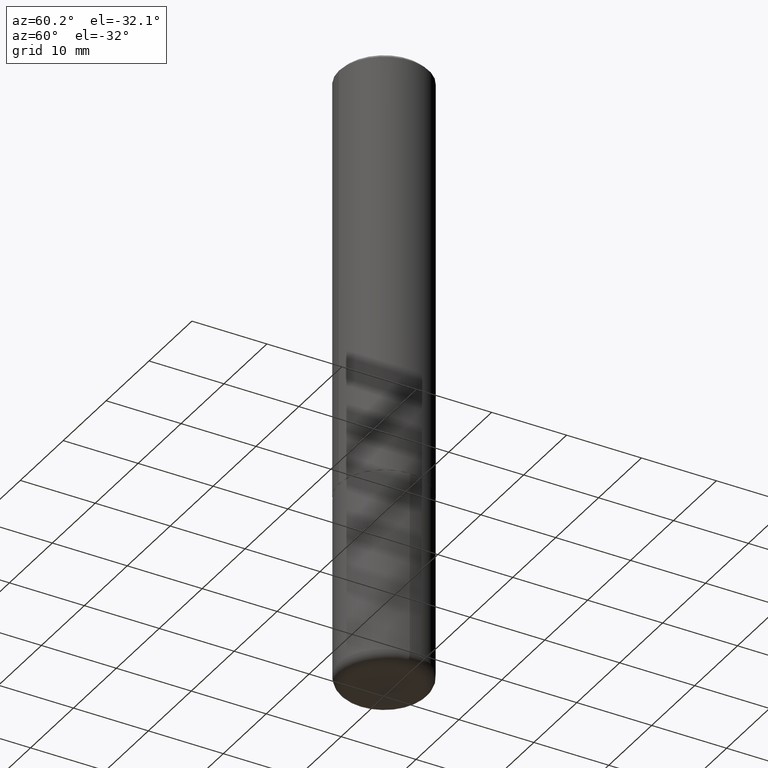
[diagram: clean part render]
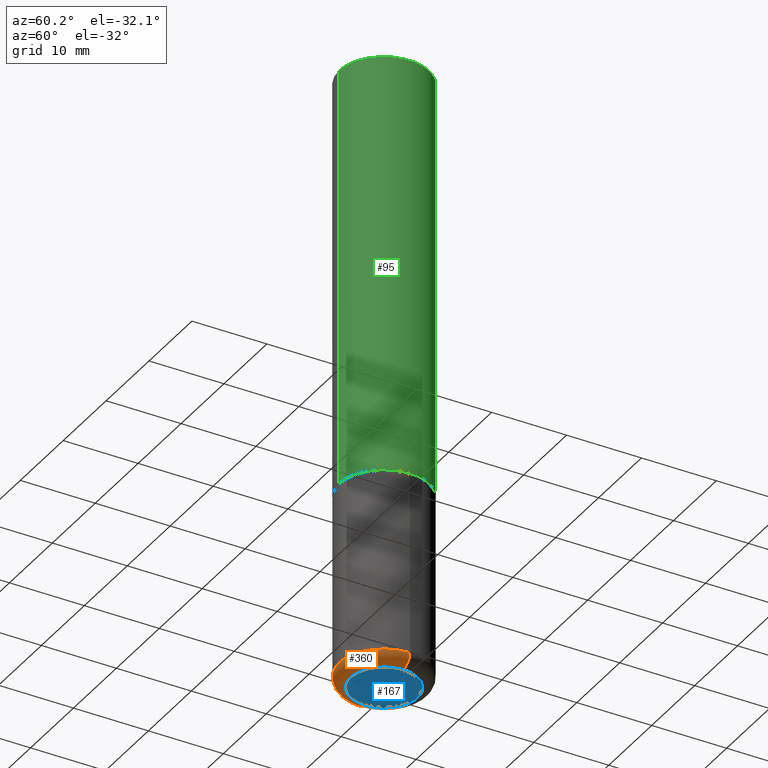
[diagram: same view with three faces highlighted in distinct colors, each labeled with its STEP entity id]
A machine part, auxiliary view with three faces highlighted in distinct colors.
Their STEP definitions:

[orange] entity #360 — the highlighted toroidal blend (fillet) surface has major radius 4.4806 mm and minor (blend) radius 1.5189 mm.
#2 = CIRCLE ( 'NONE', #391, 0.2362000000000000210 ) ;
#22 = EDGE_LOOP ( 'NONE', ( #319, #383, #142, #249 ) ) ;
#28 = CARTESIAN_POINT ( 'NONE',  ( -0.1764000000000000012, -9.946925600994110777E-15, -3.207900000000000418 ) ) ;
#34 = EDGE_CURVE ( 'NONE', #171, #211, #96, .T. ) ;
#35 = DIRECTION ( 'NONE',  ( -2.445468806185136597E-29, 3.491481338843145583E-15, 1.000000000000000000 ) ) ;
#48 = EDGE_CURVE ( 'NONE', #171, #51, #233, .T. ) ;
#51 = VERTEX_POINT ( 'NONE', #273 ) ;
#55 = CARTESIAN_POINT ( 'NONE',  ( -0.2361999999999999378, -9.522021045009570331E-15, -3.207900000000000418 ) ) ;
#84 = VERTEX_POINT ( 'NONE', #149 ) ;
#96 = CIRCLE ( 'NONE', #331, 0.05979999999999986715 ) ;
#102 = DIRECTION ( 'NONE',  ( 1.000000000000000000, -6.982962677686269077E-15, 4.883557194083113462E-29 ) ) ;
#103 = AXIS2_PLACEMENT_3D ( 'NONE', #164, #35, #102 ) ;
#116 = DIRECTION ( 'NONE',  ( -2.445468806185136597E-29, 3.491481338843145583E-15, 1.000000000000000000 ) ) ;
#117 = DIRECTION ( 'NONE',  ( 1.000000000000000000, -6.982962677686260400E-15, 0.000000000000000000 ) ) ;
#123 = DIRECTION ( 'NONE',  ( -1.000000000000000000, 7.105427357601017636E-15, 0.000000000000000000 ) ) ;
#142 = ORIENTED_EDGE ( 'NONE', *, *, #198, .T. ) ;
#144 = CARTESIAN_POINT ( 'NONE',  ( 7.991058417971171713E-29, -1.140911357093774644E-14, -3.267700000000000049 ) ) ;
#149 = CARTESIAN_POINT ( 'NONE',  ( 0.2361999999999999378, -1.284969877134442325E-14, -3.207900000000000418 ) ) ;
#160 = DIRECTION ( 'NONE',  ( 7.105427357601001859E-15, 1.000000000000000000, -3.491481338843145583E-15 ) ) ;
#164 = CARTESIAN_POINT ( 'NONE',  ( 7.844819383361301131E-29, -1.120032298687492830E-14, -3.207900000000000418 ) ) ;
#171 = VERTEX_POINT ( 'NONE', #346 ) ;
#181 = AXIS2_PLACEMENT_3D ( 'NONE', #288, #220, #117 ) ;
#197 = FACE_OUTER_BOUND ( 'NONE', #22, .T. ) ;
#198 = EDGE_CURVE ( 'NONE', #51, #84, #209, .T. ) ;
#204 = DIRECTION ( 'NONE',  ( -2.445468806185136597E-29, 3.491481338843145583E-15, 1.000000000000000000 ) ) ;
#209 = CIRCLE ( 'NONE', #181, 0.05979999999999986715 ) ;
#211 = VERTEX_POINT ( 'NONE', #55 ) ;
#220 = DIRECTION ( 'NONE',  ( -6.982962677686266711E-15, -1.000000000000000000, 3.491481338843145583E-15 ) ) ;
#225 = DIRECTION ( 'NONE',  ( 1.000000000000000000, -6.982962677686264344E-15, 0.000000000000000000 ) ) ;
#233 = CIRCLE ( 'NONE', #266, 0.1764000000000000012 ) ;
#249 = ORIENTED_EDGE ( 'NONE', *, *, #286, .F. ) ;
#266 = AXIS2_PLACEMENT_3D ( 'NONE', #144, #204, #369 ) ;
#273 = CARTESIAN_POINT ( 'NONE',  ( 0.1764000000000000012, -1.264090818728160511E-14, -3.267700000000000049 ) ) ;
#286 = EDGE_CURVE ( 'NONE', #211, #84, #2, .T. ) ;
#288 = CARTESIAN_POINT ( 'NONE',  ( 0.1764000000000000012, -1.243211760321878697E-14, -3.207900000000000418 ) ) ;
#319 = ORIENTED_EDGE ( 'NONE', *, *, #34, .F. ) ;
#331 = AXIS2_PLACEMENT_3D ( 'NONE', #28, #160, #123 ) ;
#346 = CARTESIAN_POINT ( 'NONE',  ( -0.1764000000000000012, -9.838868615033251990E-15, -3.267700000000000049 ) ) ;
#355 = TOROIDAL_SURFACE ( 'NONE', #103, 0.1764000000000000012, 0.05979999999999988103 ) ;
#360 = ADVANCED_FACE ( 'NONE', ( #197 ), #355, .T. ) ;
#369 = DIRECTION ( 'NONE',  ( 1.000000000000000000, -6.982962677686271444E-15, 0.000000000000000000 ) ) ;
#371 = CARTESIAN_POINT ( 'NONE',  ( 7.844819383361301131E-29, -1.120032298687492830E-14, -3.207900000000000418 ) ) ;
#383 = ORIENTED_EDGE ( 'NONE', *, *, #48, .T. ) ;
#391 = AXIS2_PLACEMENT_3D ( 'NONE', #371, #116, #225 ) ;

[blue] entity #167 — the highlighted planar face has unit normal (0, -0, -1).
#3 = EDGE_CURVE ( 'NONE', #51, #171, #136, .T. ) ;
#29 = CARTESIAN_POINT ( 'NONE',  ( 7.991058417971171713E-29, -1.140911357093774644E-14, -3.267700000000000049 ) ) ;
#47 = EDGE_LOOP ( 'NONE', ( #409, #343 ) ) ;
#48 = EDGE_CURVE ( 'NONE', #171, #51, #233, .T. ) ;
#51 = VERTEX_POINT ( 'NONE', #273 ) ;
#85 = DIRECTION ( 'NONE',  ( -1.000000000000000000, 6.982962677686265922E-15, -4.876176775795935793E-29 ) ) ;
#94 = DIRECTION ( 'NONE',  ( 2.438088387897960049E-29, -3.491481338843145188E-15, -1.000000000000000000 ) ) ;
#136 = CIRCLE ( 'NONE', #195, 0.1764000000000000012 ) ;
#144 = CARTESIAN_POINT ( 'NONE',  ( 7.991058417971171713E-29, -1.140911357093774644E-14, -3.267700000000000049 ) ) ;
#167 = ADVANCED_FACE ( 'NONE', ( #256 ), #404, .T. ) ;
#171 = VERTEX_POINT ( 'NONE', #346 ) ;
#184 = DIRECTION ( 'NONE',  ( 1.000000000000000000, -6.982962677686271444E-15, 0.000000000000000000 ) ) ;
#188 = DIRECTION ( 'NONE',  ( -2.445468806185136597E-29, 3.491481338843145583E-15, 1.000000000000000000 ) ) ;
#195 = AXIS2_PLACEMENT_3D ( 'NONE', #228, #188, #184 ) ;
#204 = DIRECTION ( 'NONE',  ( -2.445468806185136597E-29, 3.491481338843145583E-15, 1.000000000000000000 ) ) ;
#224 = AXIS2_PLACEMENT_3D ( 'NONE', #29, #94, #85 ) ;
#228 = CARTESIAN_POINT ( 'NONE',  ( 7.991058417971171713E-29, -1.140911357093774644E-14, -3.267700000000000049 ) ) ;
#233 = CIRCLE ( 'NONE', #266, 0.1764000000000000012 ) ;
#256 = FACE_OUTER_BOUND ( 'NONE', #47, .T. ) ;
#266 = AXIS2_PLACEMENT_3D ( 'NONE', #144, #204, #369 ) ;
#273 = CARTESIAN_POINT ( 'NONE',  ( 0.1764000000000000012, -1.264090818728160511E-14, -3.267700000000000049 ) ) ;
#343 = ORIENTED_EDGE ( 'NONE', *, *, #48, .F. ) ;
#346 = CARTESIAN_POINT ( 'NONE',  ( -0.1764000000000000012, -9.838868615033251990E-15, -3.267700000000000049 ) ) ;
#369 = DIRECTION ( 'NONE',  ( 1.000000000000000000, -6.982962677686271444E-15, 0.000000000000000000 ) ) ;
#404 = PLANE ( 'NONE',  #224 ) ;
#409 = ORIENTED_EDGE ( 'NONE', *, *, #3, .F. ) ;

[green] entity #95 — the highlighted cylindrical surface (partial cylindrical patch) has radius 5.9995 mm, axis along (-0, 0, 1).
#12 = VERTEX_POINT ( 'NONE', #412 ) ;
#26 = CIRCLE ( 'NONE', #264, 0.2362000000000000766 ) ;
#31 = EDGE_CURVE ( 'NONE', #12, #394, #231, .T. ) ;
#58 = ORIENTED_EDGE ( 'NONE', *, *, #107, .T. ) ;
#68 = DIRECTION ( 'NONE',  ( -2.445070397865137758E-29, 3.492051882233377311E-15, 1.000000000000000000 ) ) ;
#71 = CARTESIAN_POINT ( 'NONE',  ( 0.000000000000000000, 0.000000000000000000, 0.000000000000000000 ) ) ;
#80 = DIRECTION ( 'NONE',  ( -2.445070397865137758E-29, 3.492051882233377311E-15, 1.000000000000000000 ) ) ;
#88 = DIRECTION ( 'NONE',  ( -2.445070397865137758E-29, 3.492051882233377311E-15, 1.000000000000000000 ) ) ;
#89 = EDGE_LOOP ( 'NONE', ( #285, #58, #226, #179 ) ) ;
#93 = DIRECTION ( 'NONE',  ( -2.445070397865137758E-29, 3.492051882233377311E-15, 1.000000000000000000 ) ) ;
#95 = ADVANCED_FACE ( 'NONE', ( #337 ), #112, .T. ) ;
#107 = EDGE_CURVE ( 'NONE', #394, #364, #396, .T. ) ;
#109 = DIRECTION ( 'NONE',  ( -2.445070397865137758E-29, 3.492051882233377311E-15, 1.000000000000000000 ) ) ;
#112 = CYLINDRICAL_SURFACE ( 'NONE', #294, 0.2362000000000001598 ) ;
#118 = CARTESIAN_POINT ( 'NONE',  ( -1.649375784469497117E-15, -0.2362000000000001598, 8.248226545835243120E-16 ) ) ;
#125 = AXIS2_PLACEMENT_3D ( 'NONE', #310, #93, #223 ) ;
#134 = CARTESIAN_POINT ( 'NONE',  ( 1.678301941865357577E-15, 0.2362000000000001598, -8.248226545835243120E-16 ) ) ;
#147 = VECTOR ( 'NONE', #109, 39.37007874015748143 ) ;
#165 = DIRECTION ( 'NONE',  ( -6.982962677686265922E-15, -1.000000000000000000, 3.487819265831410167E-15 ) ) ;
#170 = DIRECTION ( 'NONE',  ( -6.982962677686265922E-15, -1.000000000000000000, 3.492051882233377311E-15 ) ) ;
#179 = ORIENTED_EDGE ( 'NONE', *, *, #213, .F. ) ;
#213 = EDGE_CURVE ( 'NONE', #12, #221, #411, .T. ) ;
#221 = VERTEX_POINT ( 'NONE', #248 ) ;
#223 = DIRECTION ( 'NONE',  ( -6.982962677686265922E-15, -1.000000000000000000, 3.469747663417773058E-15 ) ) ;
#226 = ORIENTED_EDGE ( 'NONE', *, *, #388, .F. ) ;
#231 = CIRCLE ( 'NONE', #125, 0.2362000000000002709 ) ;
#245 = VECTOR ( 'NONE', #88, 39.37007874015748143 ) ;
#248 = CARTESIAN_POINT ( 'NONE',  ( -1.620449627073635473E-15, -0.2362000000000001321, -0.01999999999999922673 ) ) ;
#264 = AXIS2_PLACEMENT_3D ( 'NONE', #353, #68, #165 ) ;
#285 = ORIENTED_EDGE ( 'NONE', *, *, #31, .T. ) ;
#292 = CARTESIAN_POINT ( 'NONE',  ( 1.649375784469496920E-15, 0.2361999999999999933, -0.02000000000000087472 ) ) ;
#293 = CARTESIAN_POINT ( 'NONE',  ( 1.678301941865385779E-15, 0.2361999999999924715, -2.243100000000000982 ) ) ;
#294 = AXIS2_PLACEMENT_3D ( 'NONE', #71, #80, #170 ) ;
#310 = CARTESIAN_POINT ( 'NONE',  ( 5.484537409451290549E-29, -7.833021577037690175E-15, -2.243100000000000094 ) ) ;
#337 = FACE_OUTER_BOUND ( 'NONE', #89, .T. ) ;
#353 = CARTESIAN_POINT ( 'NONE',  ( 4.890140795730287848E-31, -6.984103764466771238E-17, -0.02000000000000005246 ) ) ;
#364 = VERTEX_POINT ( 'NONE', #292 ) ;
#388 = EDGE_CURVE ( 'NONE', #221, #364, #26, .T. ) ;
#394 = VERTEX_POINT ( 'NONE', #293 ) ;
#396 = LINE ( 'NONE', #134, #147 ) ;
#411 = LINE ( 'NONE', #118, #245 ) ;
#412 = CARTESIAN_POINT ( 'NONE',  ( -1.649375784469443080E-15, -0.2362000000000080979, -2.243099999999999206 ) ) ;